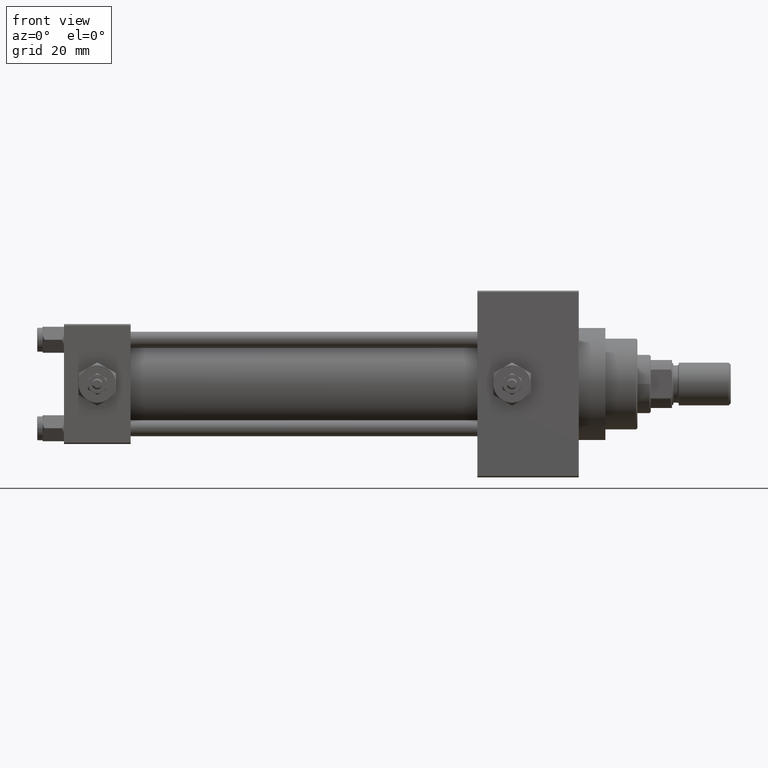
[diagram: clean part render]
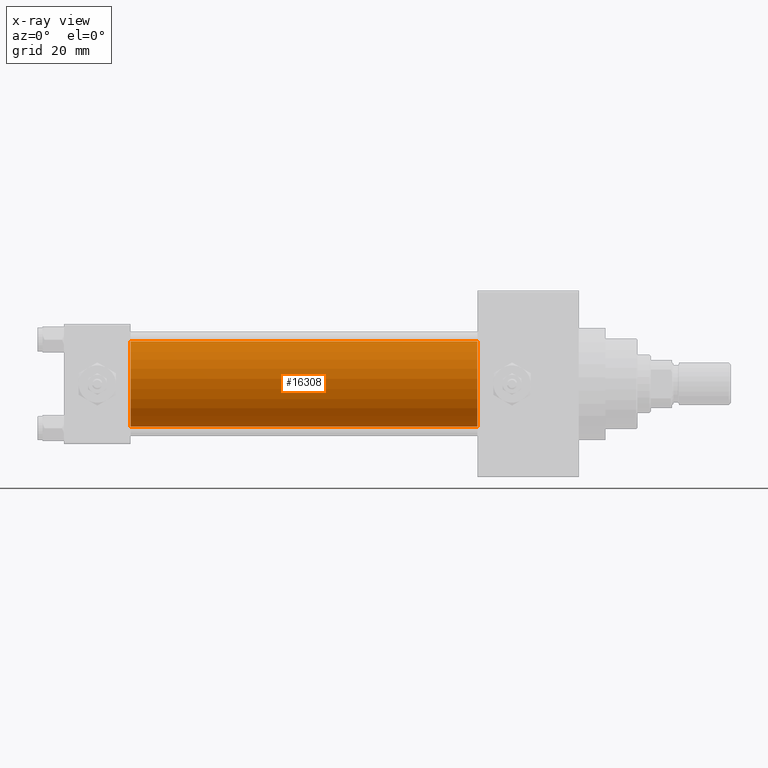
[diagram: x-ray — body ghosted, one internal face saturated and labeled with its STEP entity id]
A machine part, front view, then the same camera in x-ray: the body is ghosted and one INTERNAL B-rep face — a face not visible from any outside direction — is saturated and labeled: STEP entity #16308.
In plain terms, the highlighted cylindrical surface (partial cylindrical patch) has radius 16 mm, axis along (-1, -0, -0).
Its self-contained STEP definition (entity closure, byte-faithful):
#1148 = DIRECTION ( 'NONE',  ( 0.000000000000000000, 0.000000000000000000, 1.000000000000000000 ) ) ;
#2329 = CARTESIAN_POINT ( 'NONE',  ( 155.0000000000000000, -2.602085213965210642E-15, 0.000000000000000000 ) ) ;
#4148 = ORIENTED_EDGE ( 'NONE', *, *, #33831, .F. ) ;
#4674 = EDGE_CURVE ( 'NONE', #20237, #5946, #27902, .T. ) ;
#4860 = CARTESIAN_POINT ( 'NONE',  ( 155.0000000000000000, -6.426503353294456087E-16, -16.00000000000000000 ) ) ;
#5503 = VECTOR ( 'NONE', #27655, 1000.000000000000000 ) ;
#5946 = VERTEX_POINT ( 'NONE', #10316 ) ;
#6583 = CARTESIAN_POINT ( 'NONE',  ( 155.0000000000000000, -2.602085213965210642E-15, 16.00000000000000000 ) ) ;
#7002 = ORIENTED_EDGE ( 'NONE', *, *, #19889, .T. ) ;
#7628 = CIRCLE ( 'NONE', #11743, 16.00000000000000000 ) ;
#8415 = DIRECTION ( 'NONE',  ( -1.000000000000000000, -0.000000000000000000, -0.000000000000000000 ) ) ;
#8668 = CARTESIAN_POINT ( 'NONE',  ( 155.0000000000000000, -2.602085213965210642E-15, 0.000000000000000000 ) ) ;
#10087 = DIRECTION ( 'NONE',  ( -1.000000000000000000, -0.000000000000000000, -0.000000000000000000 ) ) ;
#10316 = CARTESIAN_POINT ( 'NONE',  ( 25.00000000000000000, -6.426503353294456087E-16, -16.00000000000000000 ) ) ;
#11253 = CIRCLE ( 'NONE', #28841, 16.00000000000000000 ) ;
#11743 = AXIS2_PLACEMENT_3D ( 'NONE', #2329, #13586, #29618 ) ;
#11930 = CARTESIAN_POINT ( 'NONE',  ( 25.00000000000000000, -2.602085213965210642E-15, 0.000000000000000000 ) ) ;
#13586 = DIRECTION ( 'NONE',  ( 1.000000000000000000, 0.000000000000000000, 0.000000000000000000 ) ) ;
#15984 = VERTEX_POINT ( 'NONE', #47396 ) ;
#16308 = ADVANCED_FACE ( 'NONE', ( #42252 ), #42744, .F. ) ;
#18602 = ORIENTED_EDGE ( 'NONE', *, *, #4674, .T. ) ;
#19889 = EDGE_CURVE ( 'NONE', #15984, #20237, #7628, .T. ) ;
#19905 = EDGE_LOOP ( 'NONE', ( #7002, #18602, #4148, #26219 ) ) ;
#19946 = EDGE_CURVE ( 'NONE', #15984, #49540, #21119, .T. ) ;
#20237 = VERTEX_POINT ( 'NONE', #28063 ) ;
#21119 = LINE ( 'NONE', #6583, #35626 ) ;
#26219 = ORIENTED_EDGE ( 'NONE', *, *, #19946, .F. ) ;
#26974 = DIRECTION ( 'NONE',  ( 1.000000000000000000, 0.000000000000000000, 0.000000000000000000 ) ) ;
#27655 = DIRECTION ( 'NONE',  ( -1.000000000000000000, -0.000000000000000000, -0.000000000000000000 ) ) ;
#27900 = CARTESIAN_POINT ( 'NONE',  ( 25.00000000000000000, -2.602085213965210642E-15, 16.00000000000000000 ) ) ;
#27902 = LINE ( 'NONE', #4860, #5503 ) ;
#28063 = CARTESIAN_POINT ( 'NONE',  ( 155.0000000000000000, -6.426503353294456087E-16, -16.00000000000000000 ) ) ;
#28841 = AXIS2_PLACEMENT_3D ( 'NONE', #11930, #26974, #30490 ) ;
#29618 = DIRECTION ( 'NONE',  ( 0.000000000000000000, 0.000000000000000000, -1.000000000000000000 ) ) ;
#30490 = DIRECTION ( 'NONE',  ( 0.000000000000000000, 0.000000000000000000, -1.000000000000000000 ) ) ;
#33831 = EDGE_CURVE ( 'NONE', #49540, #5946, #11253, .T. ) ;
#35626 = VECTOR ( 'NONE', #10087, 1000.000000000000000 ) ;
#39391 = AXIS2_PLACEMENT_3D ( 'NONE', #8668, #8415, #1148 ) ;
#42252 = FACE_OUTER_BOUND ( 'NONE', #19905, .T. ) ;
#42744 = CYLINDRICAL_SURFACE ( 'NONE', #39391, 16.00000000000000000 ) ;
#47396 = CARTESIAN_POINT ( 'NONE',  ( 155.0000000000000000, -2.602085213965210642E-15, 16.00000000000000000 ) ) ;
#49540 = VERTEX_POINT ( 'NONE', #27900 ) ;